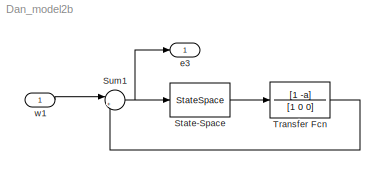
MODEL Dan_model2b
KIND model
BLOCK [StateSpace] State-Space
  A = K.A
  B = K.B
  C = K.C
  D = K.D
  SID = 20
BLOCK [Sum] Sum1
  IconShape = round
  InputSameDT = off
  Inputs = |+-
  OutDataTypeStr = Inherit: Inherit via internal rule
  Ports = [2, 1]
  SID = 6
  SaturateOnIntegerOverflow = off
BLOCK [TransferFcn] Transfer Fcn
  Denominator = [1 0 0]
  Numerator = [1 -a]
  SID = 5
BLOCK [Outport] e3
  IconDisplay = Port number
  SID = 18
BLOCK [Inport] w1
  IconDisplay = Port number
  SID = 3
LINE State-Space:1 -> Transfer Fcn:1
NET Sum1:1 -> State-Space:1, e3:1
LINE Transfer Fcn:1 -> Sum1:2
LINE w1:1 -> Sum1:1
note: NET lines group one-source signal fan-out (src -> all destinations, sorted); 1:1 wires keep LINE
